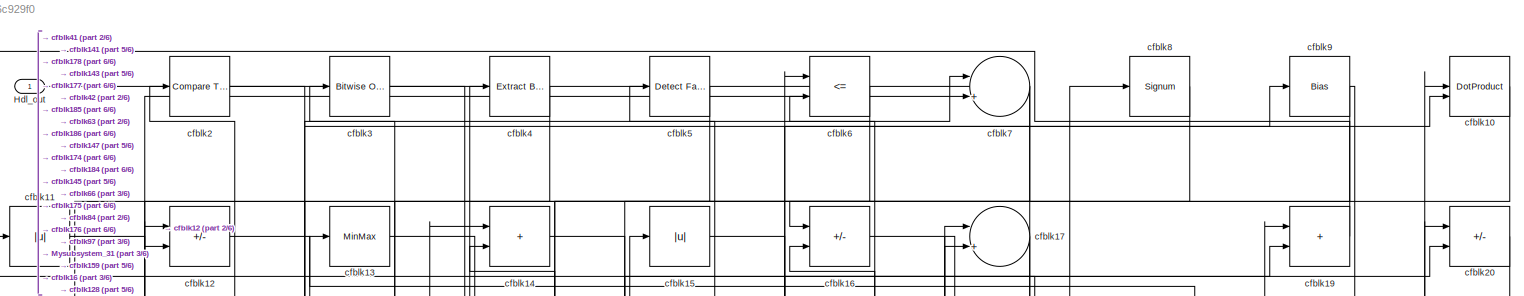
[diagram: root canvas - part 1/6, full width, top band]
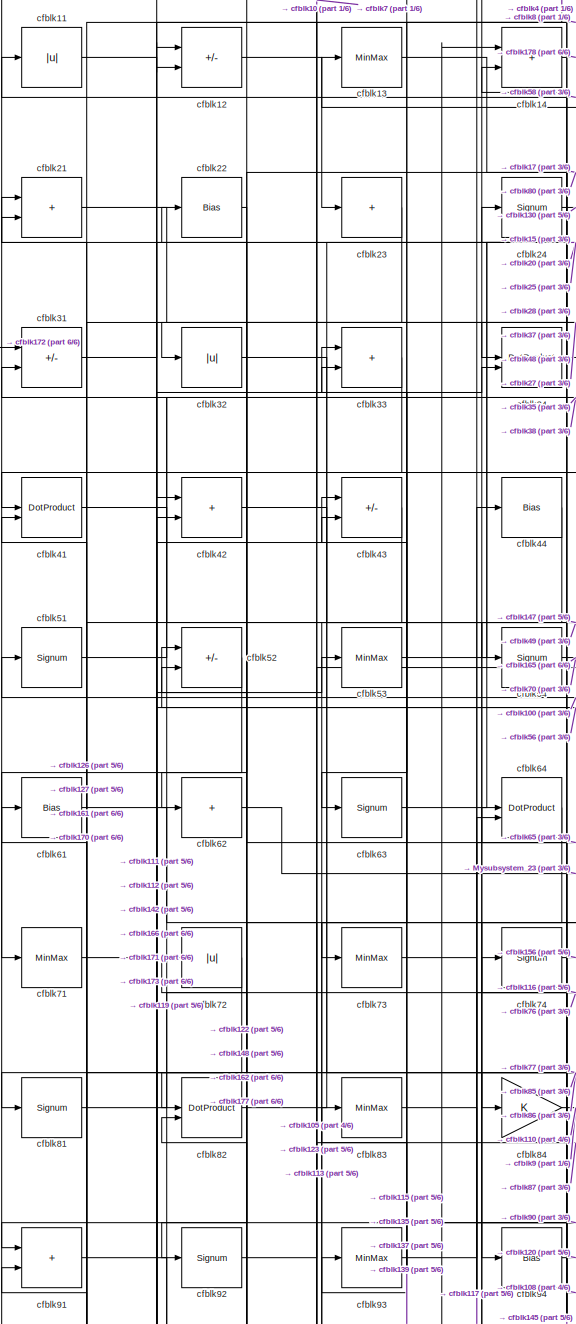
[diagram: root canvas - part 2/6, top left region]
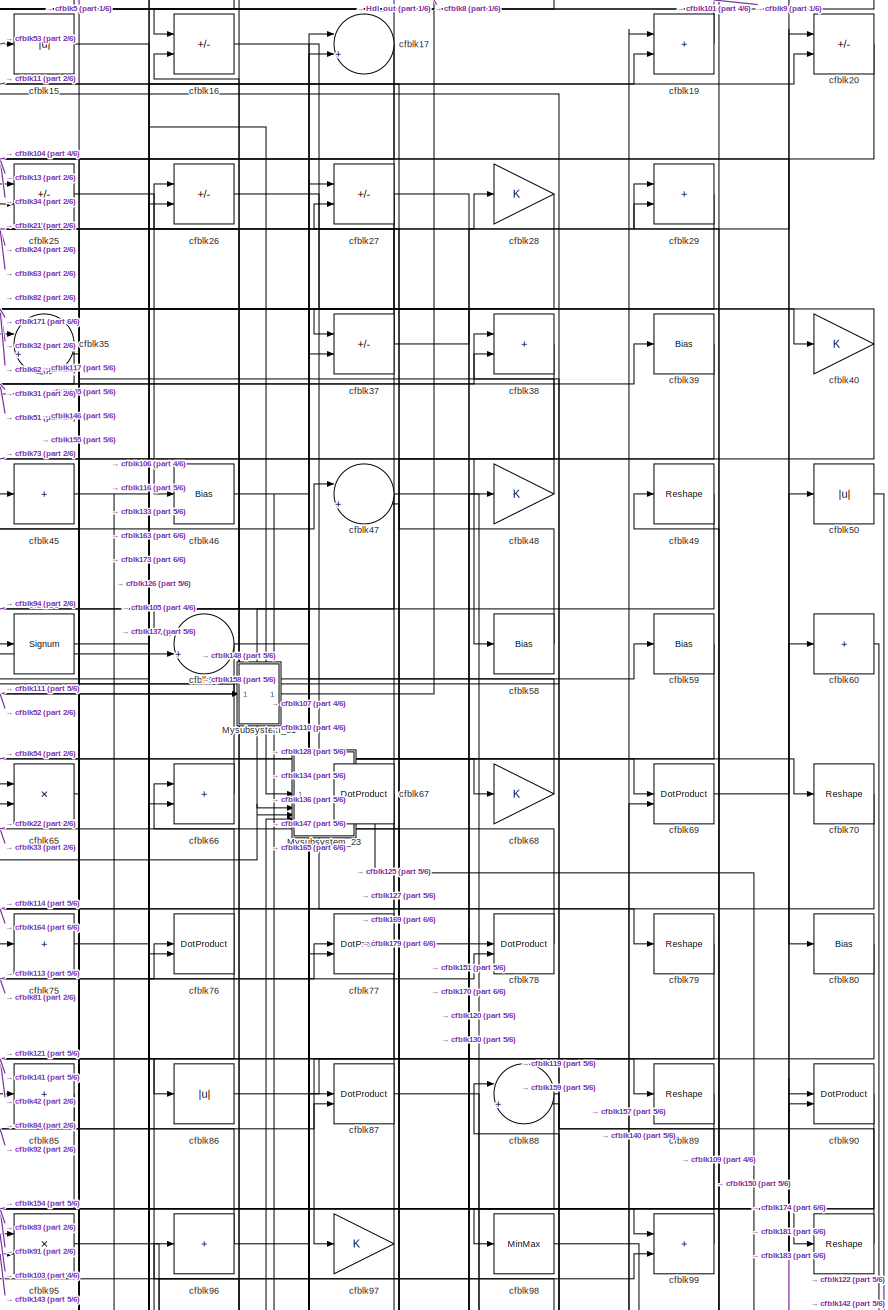
[diagram: root canvas - part 3/6, top right region]
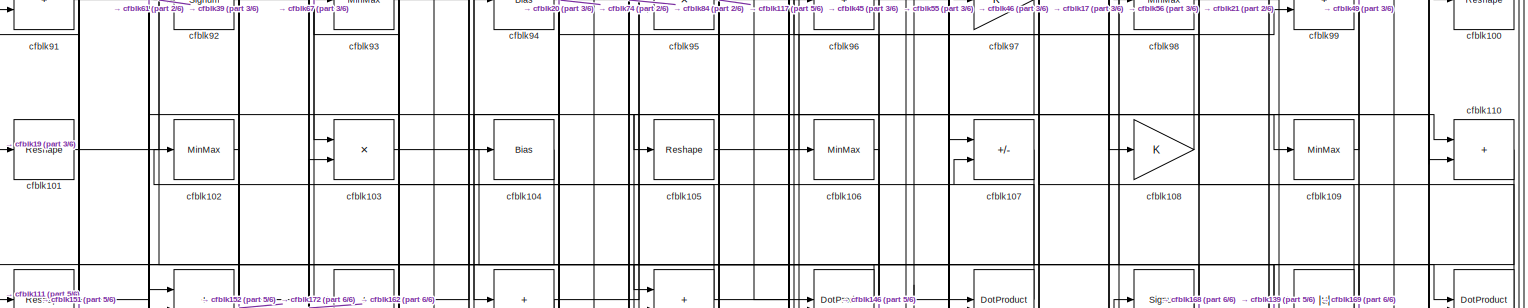
[diagram: root canvas - part 4/6, full width, middle band]
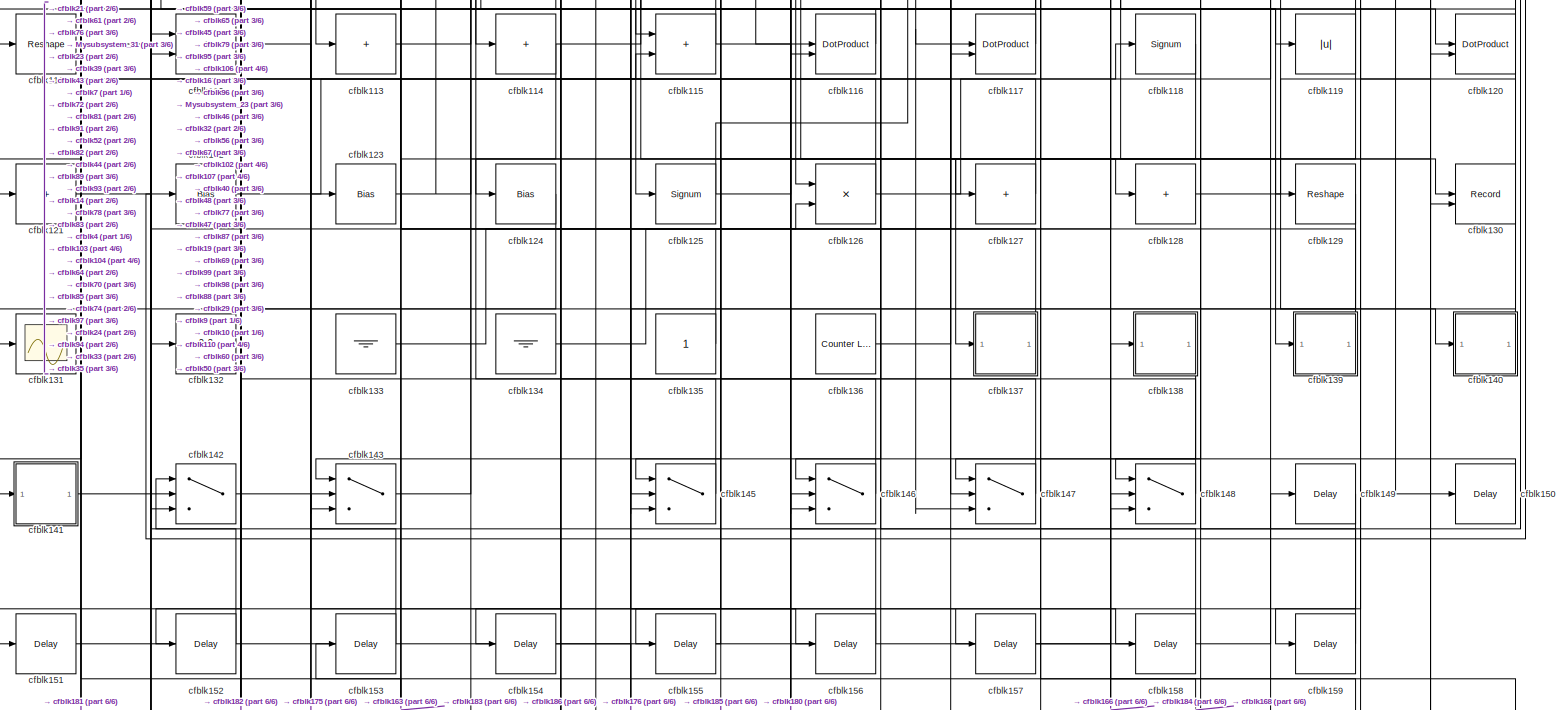
[diagram: root canvas - part 5/6, full width, bottom band]
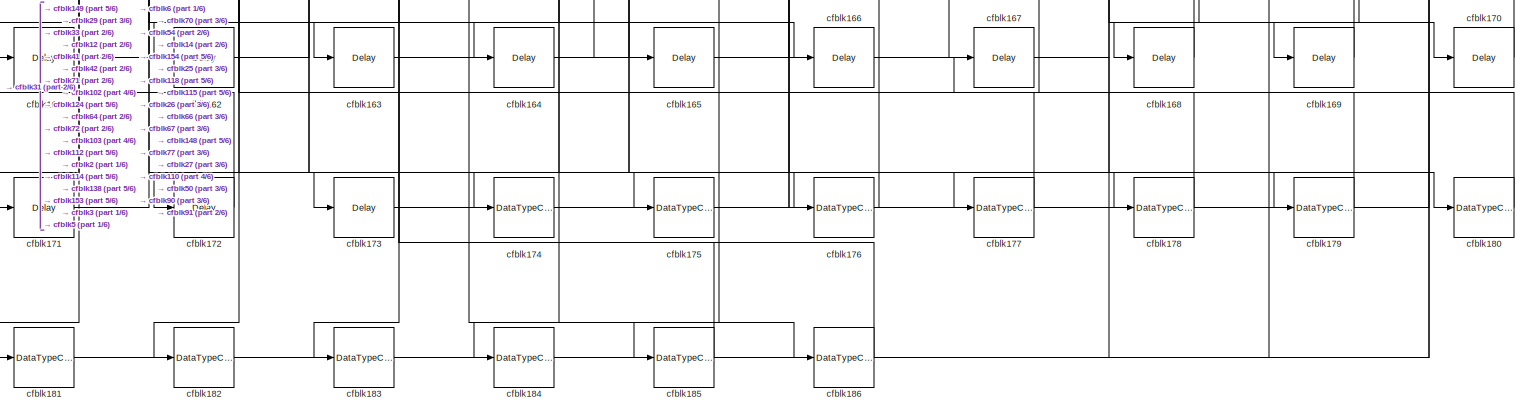
[diagram: root canvas - part 6/6, full width, bottom band]
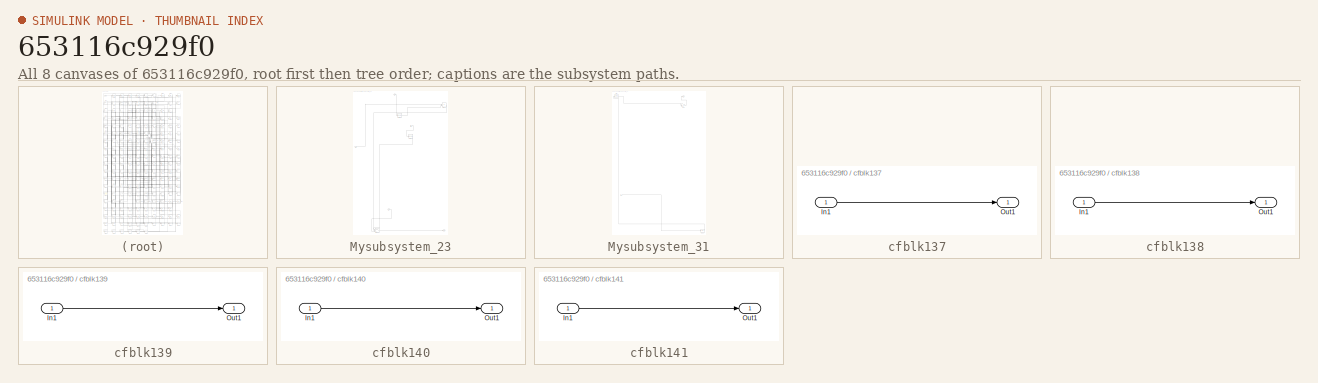
[diagram: thumbnail index - all 8 canvases of the model, root first then tree order]
MODEL slx_653116c929f0
KIND model
CONFIG AbsTol = auto
CONFIG EnableMultiTasking = off
CONFIG FixedStep = auto
CONFIG MaxStep = auto
CONFIG MinStep = auto
CONFIG RelTol = 1e-3
CONFIG SampleTimeConstraint = Unconstrained
CONFIG SolverName = VariableStepAuto
CONFIG StartTime = 0.0
CONFIG StopTime = 10.0
BLOCK [Outport] Hdl_out
  OutDataTypeStr = uint8
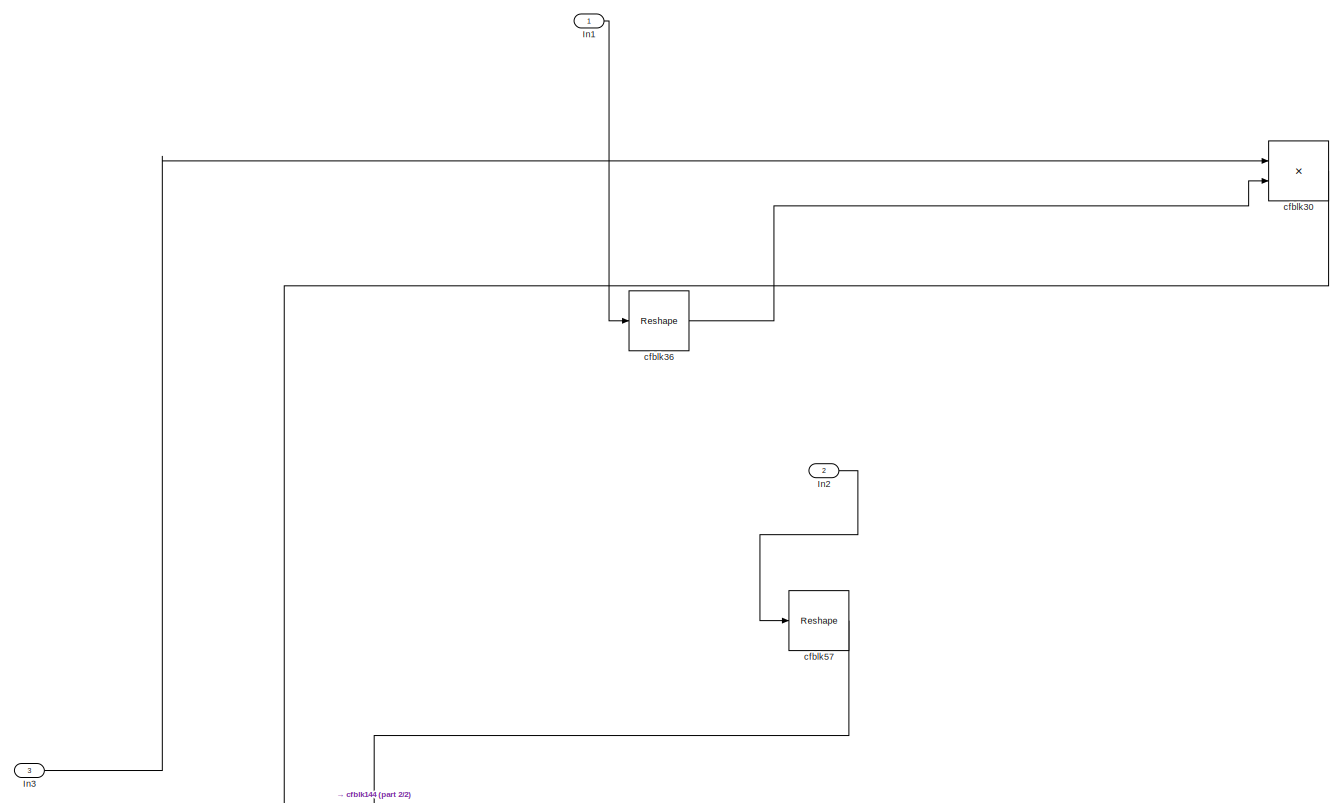
[diagram: Mysubsystem_23 - part 1/2, full width, top band]
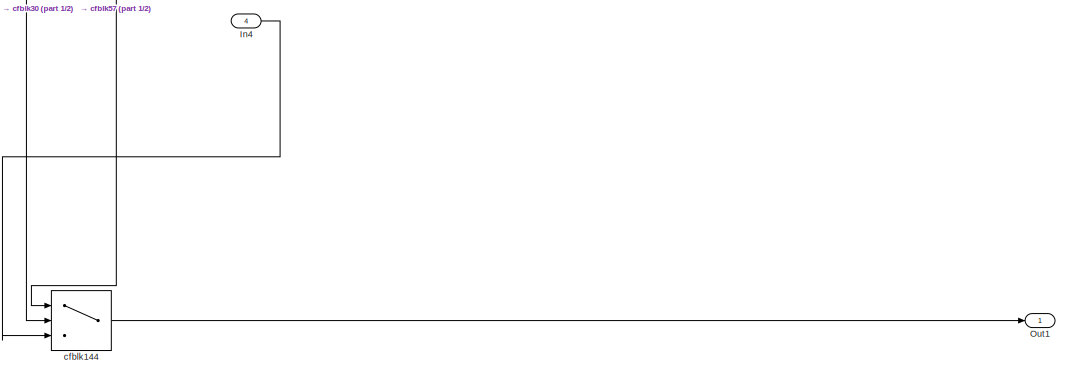
[diagram: Mysubsystem_23 - part 2/2, full width, bottom band]
BLOCK [SubSystem] Mysubsystem_23
  RTWFcnName = Mysubsystem_23
  RTWFcnNameOpts = User specified
  RTWFileNameOpts = Use function name
  RTWSystemCode = Reusable function
  TreatAsAtomicUnit = on
BLOCK [Inport] Mysubsystem_23/In1
BLOCK [Inport] Mysubsystem_23/In2
  Port = 2
BLOCK [Inport] Mysubsystem_23/In3
  Port = 3
BLOCK [Inport] Mysubsystem_23/In4
  Port = 4
BLOCK [Outport] Mysubsystem_23/Out1
BLOCK [Switch] Mysubsystem_23/cfblk144
  InputSameDT = off
  SaturateOnIntegerOverflow = off
BLOCK [Product] Mysubsystem_23/cfblk30
  Inputs = */
  RndMeth = Zero
  SaturateOnIntegerOverflow = on
BLOCK [Reshape] Mysubsystem_23/cfblk36
BLOCK [Reshape] Mysubsystem_23/cfblk57
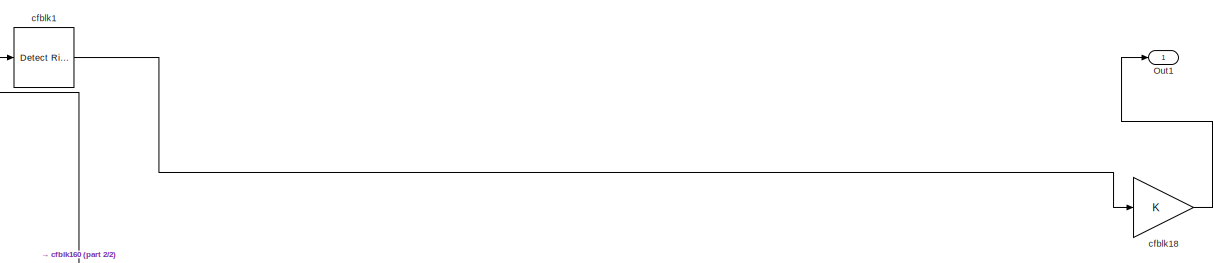
[diagram: Mysubsystem_31 - part 1/2, full width, top band]
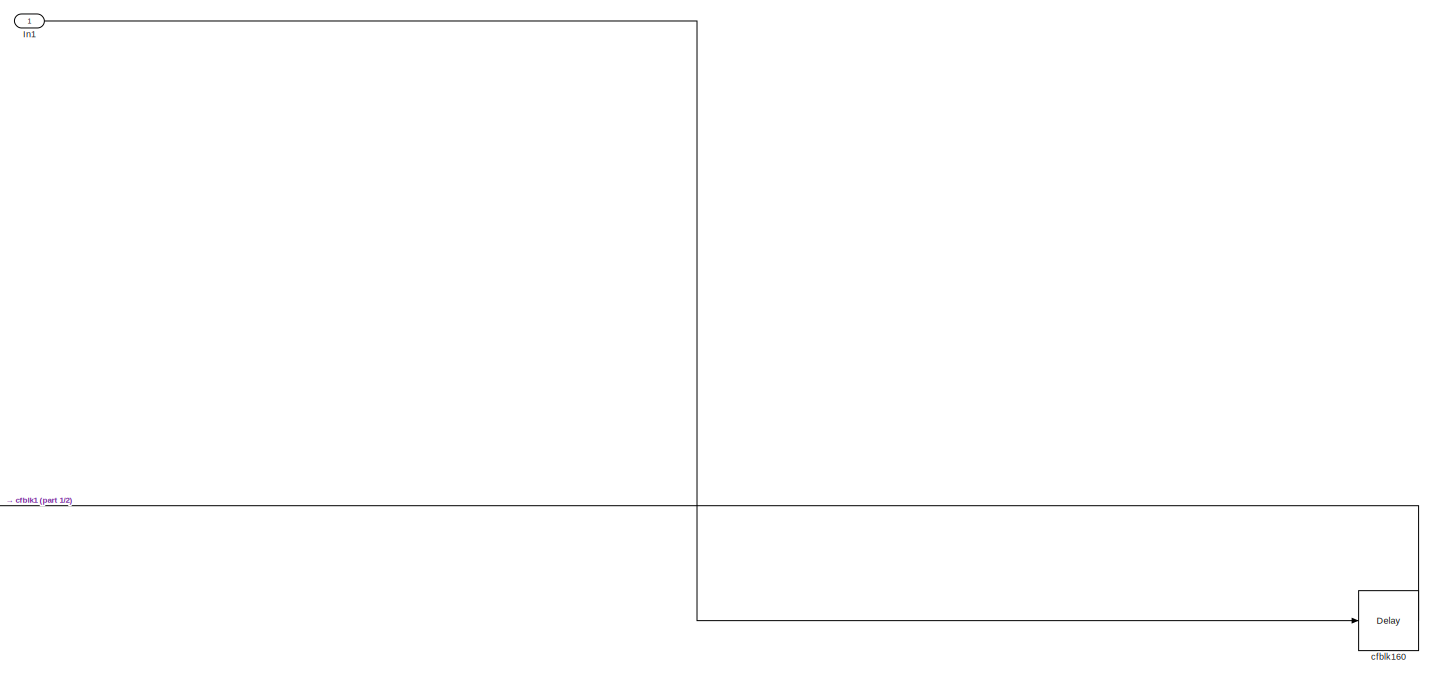
[diagram: Mysubsystem_31 - part 2/2, full width, bottom band]
BLOCK [SubSystem] Mysubsystem_31
  RTWFcnName = Mysubsystem_31
  RTWFcnNameOpts = User specified
  RTWFileNameOpts = Use function name
  RTWSystemCode = Reusable function
  TreatAsAtomicUnit = on
BLOCK [Inport] Mysubsystem_31/In1
BLOCK [Outport] Mysubsystem_31/Out1
BLOCK [Reference] Mysubsystem_31/cfblk1  REF=hdlsllib/Logic and Bit
Operations/Detect Rise
Nonnegative
  SourceBlock = hdlsllib/Logic and Bit\nOperations/Detect Rise\nNonnegative
  SourceType = Detect Rise Nonnegative
BLOCK [Delay] Mysubsystem_31/cfblk160
  InputPortMap = u0
  SampleTime = 1
BLOCK [Gain] Mysubsystem_31/cfblk18
BLOCK [DotProduct] cfblk10
  OutDataTypeStr = uint8
BLOCK [Reshape] cfblk100
BLOCK [Reshape] cfblk101
BLOCK [MinMax] cfblk102
  OutDataTypeStr = uint8
BLOCK [Product] cfblk103
  Inputs = */
  OutDataTypeStr = uint8
  RndMeth = Zero
  SaturateOnIntegerOverflow = on
BLOCK [Bias] cfblk104
  Bias = 0.0
  SaturateOnIntegerOverflow = off
BLOCK [Reshape] cfblk105
BLOCK [MinMax] cfblk106
  OutDataTypeStr = uint8
BLOCK [Sum] cfblk107
  IconShape = rectangular
  Inputs = +-
  OutDataTypeStr = uint8
BLOCK [Gain] cfblk108
  OutDataTypeStr = uint8
BLOCK [MinMax] cfblk109
  OutDataTypeStr = uint8
BLOCK [Abs] cfblk11
  OutDataTypeStr = uint8
  SaturateOnIntegerOverflow = off
BLOCK [Sum] cfblk110
  IconShape = rectangular
  OutDataTypeStr = uint8
BLOCK [Reshape] cfblk111
BLOCK [Sum] cfblk112
  IconShape = rectangular
  OutDataTypeStr = uint8
BLOCK [Sum] cfblk113
  IconShape = rectangular
  Inputs = +
  OutDataTypeStr = uint8
BLOCK [Sum] cfblk114
  IconShape = rectangular
  Inputs = +
  OutDataTypeStr = uint8
BLOCK [Sum] cfblk115
  IconShape = rectangular
  OutDataTypeStr = uint8
BLOCK [DotProduct] cfblk116
  OutDataTypeStr = uint8
BLOCK [DotProduct] cfblk117
  OutDataTypeStr = uint8
BLOCK [Signum] cfblk118
BLOCK [Abs] cfblk119
  OutDataTypeStr = uint8
  SaturateOnIntegerOverflow = off
BLOCK [Sum] cfblk12
  IconShape = rectangular
  Inputs = +-
  OutDataTypeStr = uint8
BLOCK [DotProduct] cfblk120
  OutDataTypeStr = uint8
BLOCK [Sum] cfblk121
  IconShape = rectangular
  Inputs = +
  OutDataTypeStr = uint8
BLOCK [Bias] cfblk122
  Bias = 0.0
  SaturateOnIntegerOverflow = off
BLOCK [Bias] cfblk123
  Bias = 0.0
  SaturateOnIntegerOverflow = off
BLOCK [Bias] cfblk124
  Bias = 0.0
  SaturateOnIntegerOverflow = off
BLOCK [Signum] cfblk125
BLOCK [Product] cfblk126
  Inputs = */
  OutDataTypeStr = uint8
  RndMeth = Zero
  SaturateOnIntegerOverflow = on
BLOCK [Sum] cfblk127
  IconShape = rectangular
  Inputs = +
  OutDataTypeStr = uint8
BLOCK [Sum] cfblk128
  IconShape = rectangular
  Inputs = +
  OutDataTypeStr = uint8
BLOCK [Reshape] cfblk129
BLOCK [MinMax] cfblk13
  OutDataTypeStr = uint8
BLOCK [Record] cfblk130
  CompatibilityTag = XY
  FileSettingsInternal = {"entries":[{"content":{"excelSettings":{"content":{},"type":"Streamout.ExcelSettings"}},"type":"Streamout.FileSettingStorage","uuid":""}],"packageUris":["http:\/\/schema.mathworks.com\/mf0\/streamout_blocks\/R2020a"],"version":"1.0"}
  Layout = [1 1]
  SignalsInternal = {"entries":[{"content":{"signals":[{"content":{"blockPath":[],"dimensions":[1],"domain":"","lineColor":"#a2142f","plots":[1],"port":1,"signalID":41599,"signalName":"cfblk47"},"type":"RecordBlkView.Signal","uuid":""},{"content":{"blockPath":[],"dimensions":[1],"domain":"","lineColor":"#139fff","plots":[1],"port":2,"signalID":41602,"signalName":"cfblk24"},"type":"RecordBlkView.Signal","uuid":""}]},"...<+142ch>
  VisualizationBindings = {"xyplotplugin":{"info":[{"series":[{"bindingParametersList":[{"parameter":"X-Axis","signalID":41599,"signalName":"cfblk47"},{"parameter":"Y-Axis","signalID":41602,"signalName":"cfblk24"}],"seriesID":42404}],"subplotID":1}]}}
  st = -1
BLOCK [Scope] cfblk131
  Floating = off
  NumInputPorts = 1
  ScopeSpecificationString = Simulink.scopes.TimeScopeBlockCfg('CurrentConfiguration', extmgr.ConfigurationSet(extmgr.Configuration('Core','General UI',true),extmgr.Configuration('Core','Source UI',true),extmgr.Configuration('Sources','WiredSimulink',true,'DataLoggingVariableName','ScopeData2','DataLoggingSaveFormat','Array','DataLoggingLimitDataPoints',true,'DataLoggingDecimation','1'),extmgr.Configuration('Visuals','Time Do...<+868ch>
BLOCK [Display] cfblk132
  Decimation = 1
BLOCK [Ground] cfblk133
BLOCK [Ground] cfblk134
BLOCK [Constant] cfblk135
  OutDataTypeStr = uint8
  SampleTime = -1
BLOCK [Reference] cfblk136  REF=hdlsllib/Sources/Counter
Limited
  SourceBlock = hdlsllib/Sources/Counter\nLimited
  SourceType = Counter Limited
BLOCK [SubSystem] cfblk137
  LibrarySourceBlock = hdlsllib/Ports &\nSubsystems/Subsystem
BLOCK [Inport] cfblk137/In1
BLOCK [Outport] cfblk137/Out1
BLOCK [SubSystem] cfblk138
  LibrarySourceBlock = hdlsllib/Ports &\nSubsystems/Subsystem
BLOCK [Inport] cfblk138/In1
BLOCK [Outport] cfblk138/Out1
BLOCK [SubSystem] cfblk139
  LibrarySourceBlock = hdlsllib/Ports &\nSubsystems/Subsystem
BLOCK [Inport] cfblk139/In1
BLOCK [Outport] cfblk139/Out1
BLOCK [Sum] cfblk14
  IconShape = rectangular
  OutDataTypeStr = uint8
BLOCK [SubSystem] cfblk140
  LibrarySourceBlock = hdlsllib/Ports &\nSubsystems/Subsystem
BLOCK [Inport] cfblk140/In1
BLOCK [Outport] cfblk140/Out1
BLOCK [SubSystem] cfblk141
  LibrarySourceBlock = hdlsllib/Ports &\nSubsystems/Subsystem
BLOCK [Inport] cfblk141/In1
BLOCK [Outport] cfblk141/Out1
BLOCK [Switch] cfblk142
  InputSameDT = off
  OutDataTypeStr = uint8
  SaturateOnIntegerOverflow = off
BLOCK [Switch] cfblk143
  InputSameDT = off
  OutDataTypeStr = uint8
  SaturateOnIntegerOverflow = off
BLOCK [Switch] cfblk145
  InputSameDT = off
  OutDataTypeStr = uint8
  SaturateOnIntegerOverflow = off
BLOCK [Switch] cfblk146
  InputSameDT = off
  OutDataTypeStr = uint8
  SaturateOnIntegerOverflow = off
BLOCK [Switch] cfblk147
  InputSameDT = off
  OutDataTypeStr = uint8
  SaturateOnIntegerOverflow = off
BLOCK [Switch] cfblk148
  InputSameDT = off
  OutDataTypeStr = uint8
  SaturateOnIntegerOverflow = off
BLOCK [Delay] cfblk149
  InputPortMap = u0
  SampleTime = 1
BLOCK [Abs] cfblk15
  OutDataTypeStr = uint8
  SaturateOnIntegerOverflow = off
BLOCK [Delay] cfblk150
  InputPortMap = u0
  SampleTime = 1
BLOCK [Delay] cfblk151
  InputPortMap = u0
  SampleTime = 1
BLOCK [Delay] cfblk152
  InputPortMap = u0
  SampleTime = 1
BLOCK [Delay] cfblk153
  InputPortMap = u0
  SampleTime = 1
BLOCK [Delay] cfblk154
  InputPortMap = u0
  SampleTime = 1
BLOCK [Delay] cfblk155
  InputPortMap = u0
  SampleTime = 1
BLOCK [Delay] cfblk156
  InputPortMap = u0
  SampleTime = 1
BLOCK [Delay] cfblk157
  InputPortMap = u0
  SampleTime = 1
BLOCK [Delay] cfblk158
  InputPortMap = u0
  SampleTime = 1
BLOCK [Delay] cfblk159
  InputPortMap = u0
  SampleTime = 1
BLOCK [Sum] cfblk16
  IconShape = rectangular
  Inputs = +-
  OutDataTypeStr = uint8
BLOCK [Delay] cfblk161
  InputPortMap = u0
  SampleTime = 1
BLOCK [Delay] cfblk162
  InputPortMap = u0
  SampleTime = 1
BLOCK [Delay] cfblk163
  InputPortMap = u0
  SampleTime = 1
BLOCK [Delay] cfblk164
  InputPortMap = u0
  SampleTime = 1
BLOCK [Delay] cfblk165
  InputPortMap = u0
  SampleTime = 1
BLOCK [Delay] cfblk166
  InputPortMap = u0
  SampleTime = 1
BLOCK [Delay] cfblk167
  InputPortMap = u0
  SampleTime = 1
BLOCK [Delay] cfblk168
  InputPortMap = u0
  SampleTime = 1
BLOCK [Delay] cfblk169
  InputPortMap = u0
  SampleTime = 1
BLOCK [Sum] cfblk17
  Inputs = |++
  OutDataTypeStr = uint8
BLOCK [Delay] cfblk170
  InputPortMap = u0
  SampleTime = 1
BLOCK [Delay] cfblk171
  InputPortMap = u0
  SampleTime = 1
BLOCK [Delay] cfblk172
  InputPortMap = u0
  SampleTime = 1
BLOCK [Delay] cfblk173
  InputPortMap = u0
  SampleTime = 1
BLOCK [DataTypeConversion] cfblk174
  OutDataTypeStr = uint8
  RndMeth = Floor
  SaturateOnIntegerOverflow = off
BLOCK [DataTypeConversion] cfblk175
  OutDataTypeStr = uint8
  RndMeth = Floor
  SaturateOnIntegerOverflow = off
BLOCK [DataTypeConversion] cfblk176
  OutDataTypeStr = uint8
  RndMeth = Floor
  SaturateOnIntegerOverflow = off
BLOCK [DataTypeConversion] cfblk177
  OutDataTypeStr = uint8
  RndMeth = Floor
  SaturateOnIntegerOverflow = off
BLOCK [DataTypeConversion] cfblk178
  OutDataTypeStr = uint8
  RndMeth = Floor
  SaturateOnIntegerOverflow = off
BLOCK [DataTypeConversion] cfblk179
  OutDataTypeStr = uint8
  RndMeth = Floor
  SaturateOnIntegerOverflow = off
BLOCK [DataTypeConversion] cfblk180
  OutDataTypeStr = uint8
  RndMeth = Floor
  SaturateOnIntegerOverflow = off
BLOCK [DataTypeConversion] cfblk181
  OutDataTypeStr = uint8
  RndMeth = Floor
  SaturateOnIntegerOverflow = off
BLOCK [DataTypeConversion] cfblk182
  OutDataTypeStr = uint8
  RndMeth = Floor
  SaturateOnIntegerOverflow = off
BLOCK [DataTypeConversion] cfblk183
  OutDataTypeStr = uint8
  RndMeth = Floor
  SaturateOnIntegerOverflow = off
BLOCK [DataTypeConversion] cfblk184
  OutDataTypeStr = uint8
  RndMeth = Floor
  SaturateOnIntegerOverflow = off
BLOCK [DataTypeConversion] cfblk185
  OutDataTypeStr = uint8
  RndMeth = Floor
  SaturateOnIntegerOverflow = off
BLOCK [DataTypeConversion] cfblk186
  OutDataTypeStr = uint8
  RndMeth = Floor
  SaturateOnIntegerOverflow = off
BLOCK [Sum] cfblk19
  IconShape = rectangular
  OutDataTypeStr = uint8
BLOCK [Reference] cfblk2  REF=hdlsllib/Logic and Bit
Operations/Compare
To Constant
  SourceBlock = hdlsllib/Logic and Bit\nOperations/Compare\nTo Constant
  SourceType = Compare To Constant
BLOCK [Sum] cfblk20
  IconShape = rectangular
  Inputs = +-
  OutDataTypeStr = uint8
BLOCK [Sum] cfblk21
  IconShape = rectangular
  OutDataTypeStr = uint8
BLOCK [Bias] cfblk22
  Bias = 0.0
  SaturateOnIntegerOverflow = off
BLOCK [Sum] cfblk23
  IconShape = rectangular
  Inputs = +
  OutDataTypeStr = uint8
BLOCK [Signum] cfblk24
BLOCK [Sum] cfblk25
  IconShape = rectangular
  Inputs = +-
  OutDataTypeStr = uint8
BLOCK [Sum] cfblk26
  IconShape = rectangular
  Inputs = +-
  OutDataTypeStr = uint8
BLOCK [Sum] cfblk27
  IconShape = rectangular
  Inputs = +-
  OutDataTypeStr = uint8
BLOCK [Gain] cfblk28
  OutDataTypeStr = uint8
BLOCK [Sum] cfblk29
  IconShape = rectangular
  OutDataTypeStr = uint8
BLOCK [Reference] cfblk3  REF=simulink/Logic and Bit
Operations/Bitwise
Operator
  LibrarySourceBlock = hdlsllib/Logic and Bit\nOperations/Bitwise\nOperator
  SourceBlock = simulink/Logic and Bit\nOperations/Bitwise\nOperator
  SourceType = Bitwise Operator
BLOCK [Sum] cfblk31
  IconShape = rectangular
  Inputs = +-
  OutDataTypeStr = uint8
BLOCK [Abs] cfblk32
  OutDataTypeStr = uint8
  SaturateOnIntegerOverflow = off
BLOCK [Sum] cfblk33
  IconShape = rectangular
  OutDataTypeStr = uint8
BLOCK [DotProduct] cfblk34
  OutDataTypeStr = uint8
BLOCK [Sum] cfblk35
  Inputs = |++
  OutDataTypeStr = uint8
BLOCK [Sum] cfblk37
  IconShape = rectangular
  Inputs = +-
  OutDataTypeStr = uint8
BLOCK [Sum] cfblk38
  IconShape = rectangular
  OutDataTypeStr = uint8
BLOCK [Bias] cfblk39
  Bias = 0.0
  SaturateOnIntegerOverflow = off
BLOCK [Reference] cfblk4  REF=simulink/Logic and Bit
Operations/Extract Bits
  LibrarySourceBlock = hdlsllib/Logic and Bit\nOperations/Extract Bits
  SourceBlock = simulink/Logic and Bit\nOperations/Extract Bits
  SourceType = Extract Bits
BLOCK [Gain] cfblk40
  OutDataTypeStr = uint8
BLOCK [DotProduct] cfblk41
  OutDataTypeStr = uint8
BLOCK [Sum] cfblk42
  IconShape = rectangular
  OutDataTypeStr = uint8
BLOCK [Sum] cfblk43
  IconShape = rectangular
  Inputs = +-
  OutDataTypeStr = uint8
BLOCK [Bias] cfblk44
  Bias = 0.0
  SaturateOnIntegerOverflow = off
BLOCK [Sum] cfblk45
  IconShape = rectangular
  Inputs = +
  OutDataTypeStr = uint8
BLOCK [Bias] cfblk46
  Bias = 0.0
  SaturateOnIntegerOverflow = off
BLOCK [Sum] cfblk47
  Inputs = |++
  OutDataTypeStr = uint8
BLOCK [Gain] cfblk48
  OutDataTypeStr = uint8
BLOCK [Reshape] cfblk49
BLOCK [Reference] cfblk5  REF=hdlsllib/Logic and Bit
Operations/Detect Fall
Negative
  SourceBlock = hdlsllib/Logic and Bit\nOperations/Detect Fall\nNegative
  SourceType = Detect Fall Negative
BLOCK [Abs] cfblk50
  OutDataTypeStr = uint8
  SaturateOnIntegerOverflow = off
BLOCK [Signum] cfblk51
BLOCK [Sum] cfblk52
  IconShape = rectangular
  Inputs = +-
  OutDataTypeStr = uint8
BLOCK [MinMax] cfblk53
  OutDataTypeStr = uint8
BLOCK [Signum] cfblk54
BLOCK [Signum] cfblk55
BLOCK [Sum] cfblk56
  Inputs = |++
  OutDataTypeStr = uint8
BLOCK [Bias] cfblk58
  Bias = 0.0
  SaturateOnIntegerOverflow = off
BLOCK [Bias] cfblk59
  Bias = 0.0
  SaturateOnIntegerOverflow = off
BLOCK [RelationalOperator] cfblk6
  InputSameDT = off
  Operator = <=
  OutDataTypeStr = boolean
BLOCK [Sum] cfblk60
  IconShape = rectangular
  Inputs = +
  OutDataTypeStr = uint8
BLOCK [Bias] cfblk61
  Bias = 0.0
  SaturateOnIntegerOverflow = off
BLOCK [Sum] cfblk62
  IconShape = rectangular
  Inputs = +
  OutDataTypeStr = uint8
BLOCK [Signum] cfblk63
BLOCK [DotProduct] cfblk64
  OutDataTypeStr = uint8
BLOCK [Product] cfblk65
  Inputs = */
  OutDataTypeStr = uint8
  RndMeth = Zero
  SaturateOnIntegerOverflow = on
BLOCK [Sum] cfblk66
  IconShape = rectangular
  OutDataTypeStr = uint8
BLOCK [DotProduct] cfblk67
  OutDataTypeStr = uint8
BLOCK [Gain] cfblk68
  OutDataTypeStr = uint8
BLOCK [DotProduct] cfblk69
  OutDataTypeStr = uint8
BLOCK [Sum] cfblk7
  Inputs = |++
  OutDataTypeStr = uint8
BLOCK [Reshape] cfblk70
BLOCK [MinMax] cfblk71
  OutDataTypeStr = uint8
BLOCK [Abs] cfblk72
  OutDataTypeStr = uint8
  SaturateOnIntegerOverflow = off
BLOCK [MinMax] cfblk73
  OutDataTypeStr = uint8
BLOCK [Signum] cfblk74
BLOCK [Sum] cfblk75
  IconShape = rectangular
  Inputs = +
  OutDataTypeStr = uint8
BLOCK [DotProduct] cfblk76
  OutDataTypeStr = uint8
BLOCK [DotProduct] cfblk77
  OutDataTypeStr = uint8
BLOCK [DotProduct] cfblk78
  OutDataTypeStr = uint8
BLOCK [Reshape] cfblk79
BLOCK [Signum] cfblk8
BLOCK [Bias] cfblk80
  Bias = 0.0
  SaturateOnIntegerOverflow = off
BLOCK [Signum] cfblk81
BLOCK [DotProduct] cfblk82
  OutDataTypeStr = uint8
BLOCK [MinMax] cfblk83
  OutDataTypeStr = uint8
BLOCK [Gain] cfblk84
  OutDataTypeStr = uint8
BLOCK [Sum] cfblk85
  IconShape = rectangular
  Inputs = +
  OutDataTypeStr = uint8
BLOCK [Abs] cfblk86
  OutDataTypeStr = uint8
  SaturateOnIntegerOverflow = off
BLOCK [DotProduct] cfblk87
  OutDataTypeStr = uint8
BLOCK [Sum] cfblk88
  Inputs = |++
  OutDataTypeStr = uint8
BLOCK [Reshape] cfblk89
BLOCK [Bias] cfblk9
  Bias = 0.0
  SaturateOnIntegerOverflow = off
BLOCK [DotProduct] cfblk90
  OutDataTypeStr = uint8
BLOCK [Sum] cfblk91
  IconShape = rectangular
  OutDataTypeStr = uint8
BLOCK [Signum] cfblk92
BLOCK [MinMax] cfblk93
  OutDataTypeStr = uint8
BLOCK [Bias] cfblk94
  Bias = 0.0
  SaturateOnIntegerOverflow = off
BLOCK [Product] cfblk95
  Inputs = */
  OutDataTypeStr = uint8
  RndMeth = Zero
  SaturateOnIntegerOverflow = on
BLOCK [Sum] cfblk96
  IconShape = rectangular
  Inputs = +
  OutDataTypeStr = uint8
BLOCK [Gain] cfblk97
  OutDataTypeStr = uint8
BLOCK [MinMax] cfblk98
  OutDataTypeStr = uint8
BLOCK [Sum] cfblk99
  IconShape = rectangular
  OutDataTypeStr = uint8
LINE Mysubsystem_23/In1:1 -> Mysubsystem_23/cfblk36:1
LINE Mysubsystem_23/In2:1 -> Mysubsystem_23/cfblk57:1
LINE Mysubsystem_23/In3:1 -> Mysubsystem_23/cfblk30:1
LINE Mysubsystem_23/In4:1 -> Mysubsystem_23/cfblk144:3
LINE Mysubsystem_23/cfblk144:1 -> Mysubsystem_23/Out1:1
LINE Mysubsystem_23/cfblk30:1 -> Mysubsystem_23/cfblk144:2
LINE Mysubsystem_23/cfblk36:1 -> Mysubsystem_23/cfblk30:2
LINE Mysubsystem_23/cfblk57:1 -> Mysubsystem_23/cfblk144:1
LINE Mysubsystem_23:1 -> cfblk150:1
LINE Mysubsystem_31/In1:1 -> Mysubsystem_31/cfblk160:1
LINE Mysubsystem_31/cfblk160:1 -> Mysubsystem_31/cfblk1:1
LINE Mysubsystem_31/cfblk18:1 -> Mysubsystem_31/Out1:1
LINE Mysubsystem_31/cfblk1:1 -> Mysubsystem_31/cfblk18:1
LINE Mysubsystem_31:1 -> cfblk8:1
NET cfblk100:1 -> cfblk13:1, cfblk51:1, cfblk98:1
LINE cfblk101:1 -> cfblk39:1
LINE cfblk102:1 -> cfblk172:1
LINE cfblk103:1 -> cfblk139:1
LINE cfblk104:1 -> cfblk151:1
LINE cfblk105:1 -> cfblk17:1
LINE cfblk106:1 -> cfblk146:1
LINE cfblk107:1 -> cfblk152:1
LINE cfblk108:1 -> cfblk74:1
LINE cfblk109:1 -> cfblk49:1
NET cfblk10:1 -> cfblk143:3, cfblk41:1
NET cfblk110:1 -> cfblk111:1, cfblk168:1, cfblk169:1
NET cfblk111:1 -> Mysubsystem_31:1, cfblk43:2
LINE cfblk112:1 -> cfblk175:1
LINE cfblk113:1 -> cfblk78:2
NET cfblk114:1 -> cfblk163:1, cfblk47:1
NET cfblk115:1 -> cfblk180:1, cfblk33:2
LINE cfblk116:1 -> cfblk115:1
NET cfblk117:1 -> cfblk102:1, cfblk107:2, cfblk45:1
LINE cfblk118:1 -> cfblk185:1
NET cfblk119:1 -> cfblk124:1, cfblk88:1
LINE cfblk11:1 -> cfblk42:1
NET cfblk120:1 -> cfblk145:3, cfblk47:2
LINE cfblk121:1 -> cfblk126:2
NET cfblk122:1 -> cfblk52:1, cfblk56:2, cfblk67:1
NET cfblk123:1 -> cfblk129:1, cfblk14:1, cfblk64:2
LINE cfblk124:1 -> cfblk182:1
NET cfblk125:1 -> Mysubsystem_23:4, cfblk77:1
NET cfblk126:1 -> cfblk21:2, cfblk69:2, cfblk99:2
LINE cfblk127:1 -> cfblk61:1
LINE cfblk128:1 -> cfblk10:1
LINE cfblk129:1 -> cfblk131:1
LINE cfblk12:1 -> cfblk23:1
NET cfblk133:1 -> cfblk48:1, cfblk76:2
LINE cfblk134:1 -> cfblk87:1
LINE cfblk135:1 -> cfblk43:1
LINE cfblk136:1 -> cfblk59:1
LINE cfblk137/In1:1 -> cfblk137/Out1:1
LINE cfblk137:1 -> cfblk83:1
LINE cfblk138/In1:1 -> cfblk138/Out1:1
LINE cfblk138:1 -> cfblk183:1
LINE cfblk139/In1:1 -> cfblk139/Out1:1
LINE cfblk139:1 -> cfblk93:1
LINE cfblk13:1 -> cfblk80:1
LINE cfblk140/In1:1 -> cfblk140/Out1:1
LINE cfblk140:1 -> cfblk29:1
LINE cfblk141/In1:1 -> cfblk141/Out1:1
NET cfblk141:1 -> cfblk115:2, cfblk132:1, cfblk7:2
NET cfblk142:1 -> cfblk157:1, cfblk158:1
LINE cfblk143:1 -> cfblk118:1
LINE cfblk145:1 -> cfblk64:1
LINE cfblk146:1 -> cfblk35:2
LINE cfblk147:1 -> cfblk4:1
NET cfblk148:1 -> cfblk82:2, cfblk96:1
LINE cfblk149:1 -> cfblk181:1
LINE cfblk14:1 -> cfblk178:1
LINE cfblk150:1 -> cfblk147:1
LINE cfblk151:1 -> cfblk78:1
LINE cfblk152:1 -> cfblk112:1
LINE cfblk153:1 -> cfblk143:2
LINE cfblk154:1 -> cfblk176:1
LINE cfblk155:1 -> cfblk35:1
LINE cfblk156:1 -> cfblk146:2
LINE cfblk157:1 -> cfblk19:1
LINE cfblk158:1 -> cfblk16:2
LINE cfblk159:1 -> cfblk88:2
NET cfblk15:1 -> Mysubsystem_23:1, cfblk37:2
LINE cfblk161:1 -> cfblk42:2
LINE cfblk162:1 -> cfblk103:2
LINE cfblk163:1 -> cfblk26:2
LINE cfblk164:1 -> cfblk25:2
LINE cfblk165:1 -> cfblk77:2
LINE cfblk166:1 -> cfblk148:3
LINE cfblk167:1 -> cfblk179:1
LINE cfblk168:1 -> cfblk148:2
LINE cfblk169:1 -> cfblk27:2
NET cfblk16:1 -> cfblk69:1, cfblk79:1
LINE cfblk170:1 -> cfblk91:2
LINE cfblk171:1 -> cfblk12:1
LINE cfblk172:1 -> cfblk31:1
LINE cfblk173:1 -> cfblk66:2
LINE cfblk174:1 -> cfblk50:1
LINE cfblk175:1 -> cfblk6:1
LINE cfblk176:1 -> cfblk6:2
LINE cfblk177:1 -> cfblk72:1
LINE cfblk178:1 -> cfblk2:1
LINE cfblk179:1 -> cfblk67:2
NET cfblk17:1 -> cfblk34:1, cfblk65:1
LINE cfblk180:1 -> cfblk167:1
LINE cfblk181:1 -> cfblk90:1
LINE cfblk182:1 -> cfblk149:1
LINE cfblk183:1 -> cfblk90:2
LINE cfblk184:1 -> cfblk138:1
LINE cfblk185:1 -> cfblk3:1
LINE cfblk186:1 -> cfblk153:1
LINE cfblk19:1 -> cfblk101:1
NET cfblk20:1 -> cfblk104:1, cfblk82:1
LINE cfblk21:1 -> cfblk108:1
LINE cfblk22:1 -> cfblk92:1
LINE cfblk23:1 -> cfblk112:2
LINE cfblk24:1 -> cfblk130:2
LINE cfblk25:1 -> cfblk46:1
LINE cfblk26:1 -> cfblk40:1
NET cfblk27:1 -> cfblk32:1, cfblk75:1, cfblk99:1
LINE cfblk28:1 -> cfblk62:1
LINE cfblk29:1 -> cfblk171:1
LINE cfblk2:1 -> cfblk177:1
LINE cfblk31:1 -> cfblk25:1
LINE cfblk32:1 -> cfblk147:2
LINE cfblk33:1 -> cfblk161:1
NET cfblk34:1 -> cfblk14:2, cfblk20:2
LINE cfblk35:1 -> cfblk31:2
NET cfblk37:1 -> cfblk21:1, cfblk29:2
LINE cfblk38:1 -> cfblk73:1
NET cfblk39:1 -> cfblk142:3, cfblk56:1
LINE cfblk3:1 -> cfblk186:1
NET cfblk40:1 -> cfblk127:1, cfblk37:1, cfblk58:1
NET cfblk41:1 -> cfblk166:1, cfblk54:1
NET cfblk42:1 -> cfblk10:2, cfblk7:1, cfblk86:1
LINE cfblk43:1 -> cfblk81:1
LINE cfblk44:1 -> cfblk113:1
NET cfblk45:1 -> cfblk109:1, cfblk116:1
NET cfblk46:1 -> cfblk110:1, cfblk117:1, cfblk147:3, cfblk27:1
NET cfblk47:1 -> Mysubsystem_23:2, cfblk130:1
LINE cfblk48:1 -> cfblk24:1
LINE cfblk49:1 -> cfblk94:1
LINE cfblk4:1 -> cfblk63:1
LINE cfblk50:1 -> cfblk122:1
LINE cfblk51:1 -> cfblk38:1
LINE cfblk52:1 -> cfblk71:1
LINE cfblk53:1 -> cfblk15:1
NET cfblk54:1 -> cfblk165:1, cfblk70:1
LINE cfblk55:1 -> cfblk106:1
NET cfblk56:1 -> cfblk107:1, cfblk52:2, cfblk68:1
LINE cfblk58:1 -> cfblk11:1
LINE cfblk59:1 -> cfblk145:1
LINE cfblk5:1 -> cfblk184:1
LINE cfblk60:1 -> cfblk142:1
NET cfblk61:1 -> cfblk105:1, cfblk123:1
LINE cfblk62:1 -> Mysubsystem_23:3
LINE cfblk63:1 -> cfblk20:1
LINE cfblk64:1 -> cfblk162:1
LINE cfblk65:1 -> cfblk155:1
LINE cfblk66:1 -> cfblk5:1
NET cfblk67:1 -> cfblk103:1, cfblk95:1
LINE cfblk68:1 -> cfblk26:1
LINE cfblk69:1 -> cfblk60:1
LINE cfblk6:1 -> cfblk174:1
NET cfblk70:1 -> cfblk114:1, cfblk164:1
NET cfblk71:1 -> cfblk173:1, cfblk53:1
LINE cfblk72:1 -> cfblk142:2
NET cfblk73:1 -> cfblk65:2, cfblk85:1
LINE cfblk74:1 -> cfblk156:1
LINE cfblk75:1 -> cfblk19:2
NET cfblk76:1 -> cfblk121:1, cfblk22:1, cfblk33:1
NET cfblk77:1 -> cfblk141:1, cfblk170:1, cfblk84:1
LINE cfblk78:1 -> cfblk66:1
LINE cfblk79:1 -> cfblk126:1
LINE cfblk7:1 -> cfblk145:2
LINE cfblk80:1 -> cfblk97:1
NET cfblk81:1 -> cfblk116:2, cfblk41:2, cfblk76:1
LINE cfblk82:1 -> cfblk28:1
NET cfblk83:1 -> cfblk100:1, cfblk117:2
NET cfblk84:1 -> cfblk110:2, cfblk9:1
LINE cfblk85:1 -> cfblk154:1
LINE cfblk86:1 -> cfblk89:1
LINE cfblk87:1 -> cfblk120:1
NET cfblk88:1 -> cfblk146:3, cfblk148:1
NET cfblk89:1 -> cfblk143:1, cfblk95:2
LINE cfblk8:1 -> cfblk12:2
LINE cfblk90:1 -> cfblk91:1
NET cfblk91:1 -> cfblk119:1, cfblk34:2
LINE cfblk92:1 -> cfblk87:2
LINE cfblk93:1 -> cfblk44:1
LINE cfblk94:1 -> cfblk120:2
LINE cfblk95:1 -> cfblk137:1
NET cfblk96:1 -> cfblk128:1, cfblk17:2, cfblk55:1
NET cfblk97:1 -> Hdl_out:1, cfblk125:1
LINE cfblk98:1 -> cfblk140:1
LINE cfblk99:1 -> cfblk38:2
NET cfblk9:1 -> cfblk159:1, cfblk16:1
note: NET lines group one-source signal fan-out (src -> all destinations, sorted); 1:1 wires keep LINE
